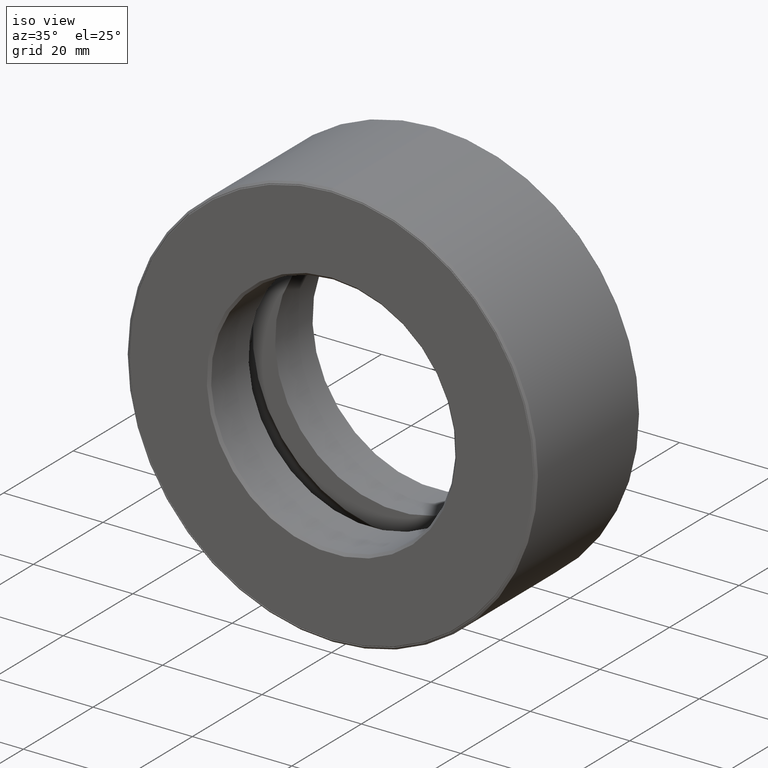
[diagram: clean part render]
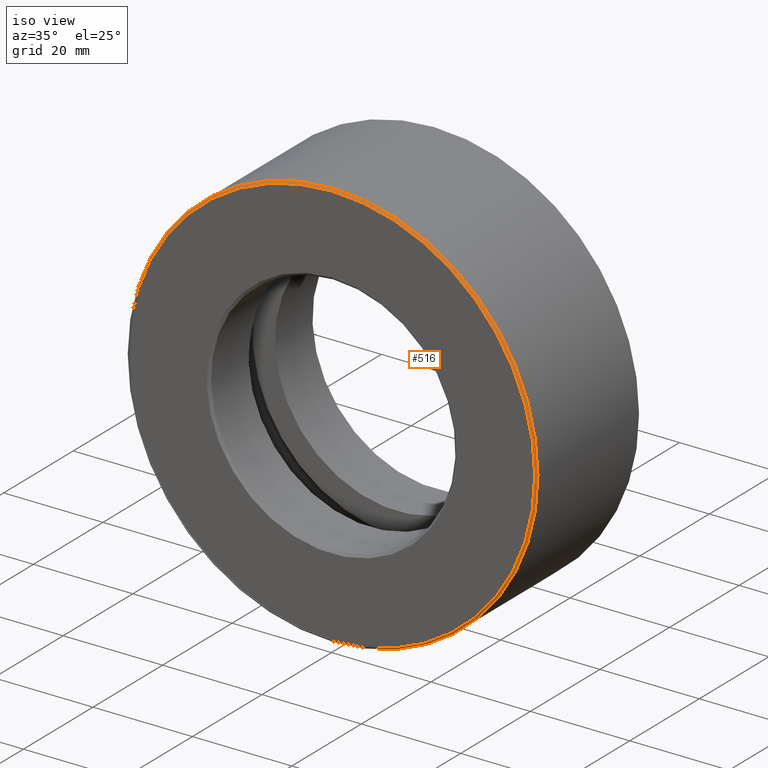
[diagram: same view with one face highlighted and labeled with its STEP entity id]
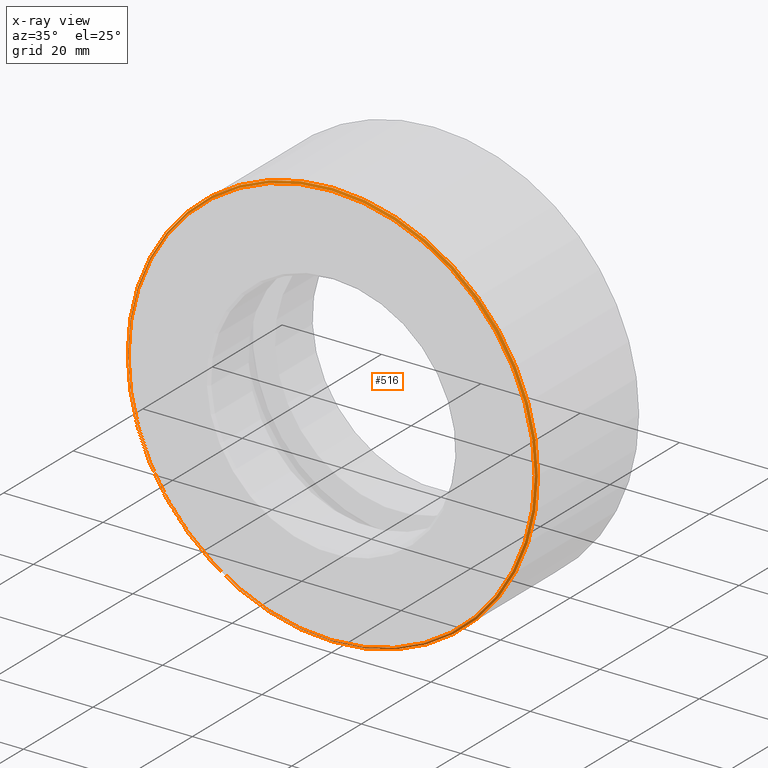
[diagram: x-ray of the same camera — body ghosted, the highlighted face saturated]
A machine part, iso view. The second image highlights one B-rep face of the part: STEP entity #516.
The next image is the same camera in x-ray: the body ghosted, the highlighted face saturated — about 0% of this face is hidden behind the body in this view.
In plain terms, the highlighted conical surface has half-angle 45 deg.
Its self-contained STEP definition (entity closure, byte-faithful):
#21 = CARTESIAN_POINT ( 'NONE',  ( 0.0000000000000000000, -8.750450604705842700E-017, 0.0000000000000000000 ) ) ;
#24 = EDGE_LOOP ( 'NONE', ( #377 ) ) ;
#61 = EDGE_CURVE ( 'NONE', #467, #467, #130, .T. ) ;
#130 = CIRCLE ( 'NONE', #587, 1.624999999999999800 ) ;
#142 = CIRCLE ( 'NONE', #345, 1.610000000000000100 ) ;
#170 = DIRECTION ( 'NONE',  ( 0.0000000000000000000, 0.0000000000000000000, 1.000000000000000000 ) ) ;
#214 = DIRECTION ( 'NONE',  ( 0.0000000000000000000, 0.0000000000000000000, 1.000000000000000000 ) ) ;
#225 = FACE_BOUND ( 'NONE', #24, .T. ) ;
#257 = AXIS2_PLACEMENT_3D ( 'NONE', #353, #404, #214 ) ;
#263 = DIRECTION ( 'NONE',  ( -0.0000000000000000000, 1.000000000000000000, -0.0000000000000000000 ) ) ;
#295 = DIRECTION ( 'NONE',  ( 0.0000000000000000000, 0.0000000000000000000, 1.000000000000000000 ) ) ;
#302 = DIRECTION ( 'NONE',  ( -0.0000000000000000000, 1.000000000000000000, -0.0000000000000000000 ) ) ;
#318 = CARTESIAN_POINT ( 'NONE',  ( 0.0000000000000000000, 0.01499999999999997700, 0.0000000000000000000 ) ) ;
#343 = EDGE_CURVE ( 'NONE', #397, #397, #142, .T. ) ;
#345 = AXIS2_PLACEMENT_3D ( 'NONE', #21, #302, #295 ) ;
#353 = CARTESIAN_POINT ( 'NONE',  ( 0.0000000000000000000, -8.750450604705842700E-017, 0.0000000000000000000 ) ) ;
#372 = CARTESIAN_POINT ( 'NONE',  ( 0.0000000000000000000, -8.750450604705842700E-017, 1.610000000000000100 ) ) ;
#377 = ORIENTED_EDGE ( 'NONE', *, *, #343, .T. ) ;
#397 = VERTEX_POINT ( 'NONE', #372 ) ;
#404 = DIRECTION ( 'NONE',  ( -0.0000000000000000000, 1.000000000000000000, -0.0000000000000000000 ) ) ;
#419 = CARTESIAN_POINT ( 'NONE',  ( 0.0000000000000000000, 0.01499999999999997700, 1.624999999999999800 ) ) ;
#433 = EDGE_LOOP ( 'NONE', ( #474 ) ) ;
#434 = CONICAL_SURFACE ( 'NONE', #257, 1.610000000000000100, 0.7853981633974362900 ) ;
#467 = VERTEX_POINT ( 'NONE', #419 ) ;
#474 = ORIENTED_EDGE ( 'NONE', *, *, #61, .F. ) ;
#504 = FACE_OUTER_BOUND ( 'NONE', #433, .T. ) ;
#516 = ADVANCED_FACE ( 'NONE', ( #504, #225 ), #434, .T. ) ;
#587 = AXIS2_PLACEMENT_3D ( 'NONE', #318, #263, #170 ) ;